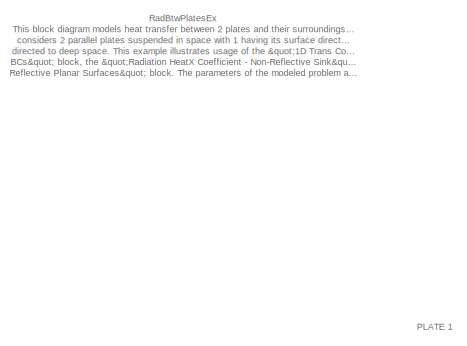
[diagram: root canvas - part 1/2, top left region]
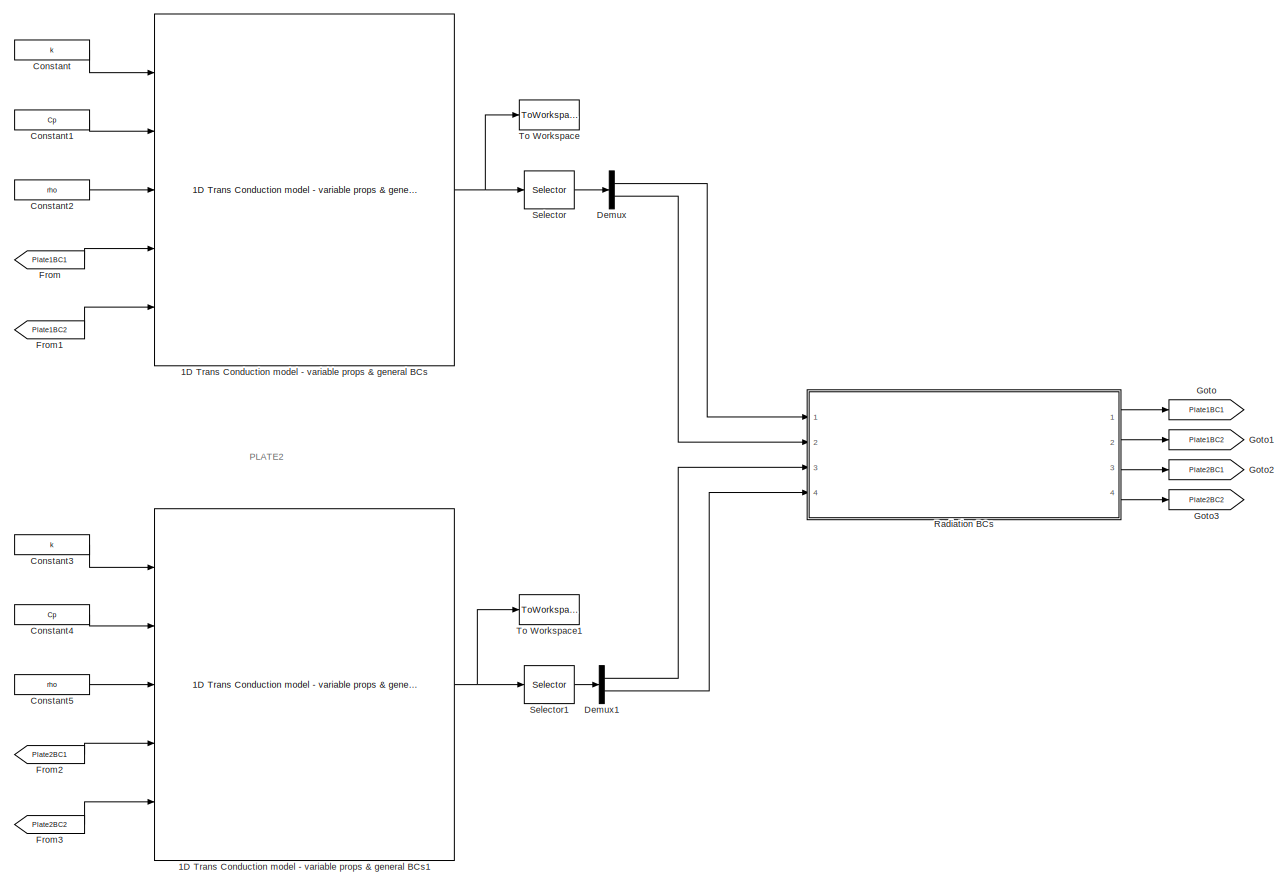
[diagram: root canvas - part 2/2, full width, middle band]
MODEL slx_18f9780a81a9
KIND model
CONFIG AbsTol = auto
CONFIG FixedStep = dt
CONFIG MaxStep = auto
CONFIG MinStep = auto
CONFIG RelTol = 1e-3
CONFIG SampleTimeConstraint = Unconstrained
CONFIG Solver = FixedStepDiscrete
CONFIG SolverMode = Auto
CONFIG SolverName = FixedStepDiscrete
CONFIG StartTime = 0.0
CONFIG StopTime = tsim
BLOCK [Reference] 1D Trans Conduction model - variable props & general BCs  REF=lib_Conduction_HeatX1DVarPropsAndGenBCs/1D Trans Conduction model - variable props & general BCs
  BN_M = double(gcb)
  Ports = [5, 1]
  SourceBlock = lib_Conduction_HeatX1DVarPropsAndGenBCs/1D Trans Conduction model - variable props & general BCs
  SourceType = TSAT: 1-D Trans Conduction Model - Variable Props + Generic BCs Block
  T0_M = To1
  a_M = off
  condin_M = off
  condout_M = off
  convin_M = off
  convout_M = off
  dt_M = dt
  radin_M = on
  radout_M = on
  x_M = x1
BLOCK [Reference] 1D Trans Conduction model - variable props & general BCs1  REF=lib_Conduction_HeatX1DVarPropsAndGenBCs/1D Trans Conduction model - variable props & general BCs
  BN_M = double(gcb)
  Ports = [5, 1]
  SourceBlock = lib_Conduction_HeatX1DVarPropsAndGenBCs/1D Trans Conduction model - variable props & general BCs
  SourceType = TSAT: 1-D Trans Conduction Model - Variable Props + Generic BCs Block
  T0_M = To2
  a_M = off
  condin_M = off
  condout_M = off
  convin_M = off
  convout_M = off
  dt_M = dt
  radin_M = on
  radout_M = on
  x_M = x2
BLOCK [Constant] Constant
  Value = k
BLOCK [Constant] Constant1
  Value = Cp
BLOCK [Constant] Constant2
  Value = rho
BLOCK [Constant] Constant3
  Value = k
BLOCK [Constant] Constant4
  Value = Cp
BLOCK [Constant] Constant5
  Value = rho
BLOCK [Demux] Demux
  DisplayOption = bar
  Outputs = 2
  Ports = [1, 2]
BLOCK [Demux] Demux1
  DisplayOption = bar
  Outputs = 2
  Ports = [1, 2]
BLOCK [From] From
  GotoTag = Plate1BC1
BLOCK [From] From1
  GotoTag = Plate1BC2
BLOCK [From] From2
  GotoTag = Plate2BC1
BLOCK [From] From3
  GotoTag = Plate2BC2
BLOCK [Goto] Goto
  GotoTag = Plate1BC1
BLOCK [Goto] Goto1
  GotoTag = Plate1BC2
BLOCK [Goto] Goto2
  GotoTag = Plate2BC1
BLOCK [Goto] Goto3
  GotoTag = Plate2BC2
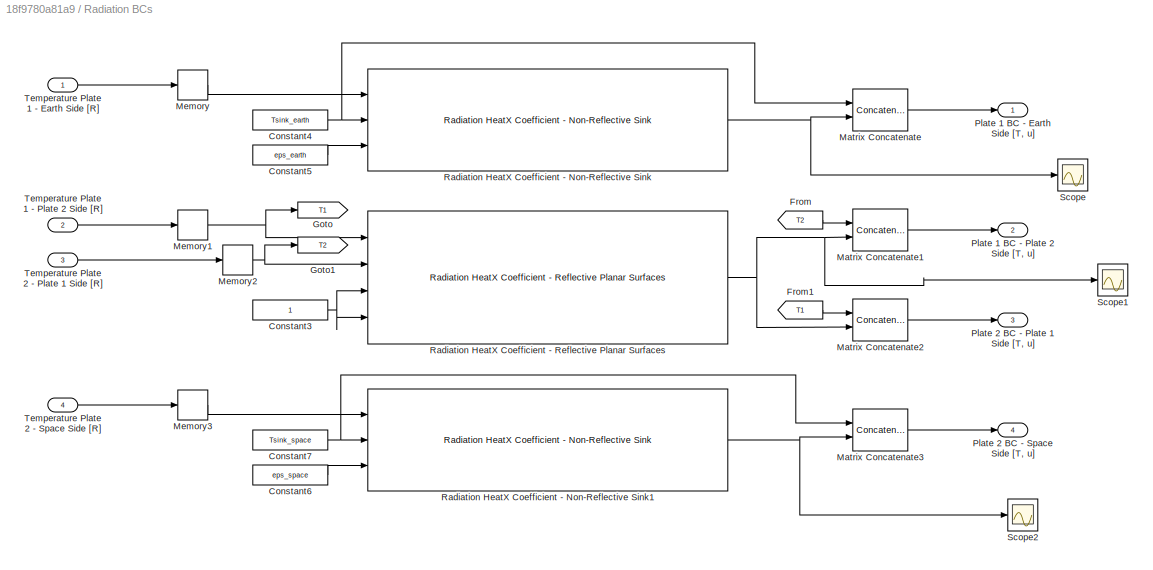
BLOCK [SubSystem] Radiation BCs
  Ports = [4, 4]
  RequestExecContextInheritance = off
BLOCK [Constant] Radiation BCs/Constant3
BLOCK [Constant] Radiation BCs/Constant4
  Value = Tsink_earth
BLOCK [Constant] Radiation BCs/Constant5
  Value = eps_earth
BLOCK [Constant] Radiation BCs/Constant6
  Value = eps_space
BLOCK [Constant] Radiation BCs/Constant7
  Value = Tsink_space
BLOCK [From] Radiation BCs/From
  GotoTag = T2
BLOCK [From] Radiation BCs/From1
  GotoTag = T1
BLOCK [Goto] Radiation BCs/Goto
  GotoTag = T1
BLOCK [Goto] Radiation BCs/Goto1
  GotoTag = T2
BLOCK [Concatenate] Radiation BCs/Matrix Concatenate
  ConcatenateDimension = 2
  Ports = [2, 1]
BLOCK [Concatenate] Radiation BCs/Matrix Concatenate1
  ConcatenateDimension = 2
  Ports = [2, 1]
BLOCK [Concatenate] Radiation BCs/Matrix Concatenate2
  ConcatenateDimension = 2
  Ports = [2, 1]
BLOCK [Concatenate] Radiation BCs/Matrix Concatenate3
  ConcatenateDimension = 2
  Ports = [2, 1]
BLOCK [Memory] Radiation BCs/Memory
  X0 = To1(1)
BLOCK [Memory] Radiation BCs/Memory1
  X0 = To1(end)
BLOCK [Memory] Radiation BCs/Memory2
  X0 = To2(1)
BLOCK [Memory] Radiation BCs/Memory3
  X0 = To2(end)
BLOCK [Outport] Radiation BCs/Plate 1 BC - Earth Side [T, u]
  IconDisplay = Port number
BLOCK [Outport] Radiation BCs/Plate 1 BC - Plate 2 Side [T, u]
  IconDisplay = Port number
  Port = 2
BLOCK [Outport] Radiation BCs/Plate 2 BC - Plate 1 Side [T, u]
  IconDisplay = Port number
  Port = 3
BLOCK [Outport] Radiation BCs/Plate 2 BC - Space Side [T, u]
  IconDisplay = Port number
  Port = 4
BLOCK [Reference] Radiation BCs/Radiation HeatX Coefficient - Non-Reflective Sink  REF=lib_Radiation_HeatXCoeffNonRefSink/Radiation HeatX Coefficient - Non-Reflective Sink
  Ports = [3, 1]
  SourceBlock = lib_Radiation_HeatXCoeffNonRefSink/Radiation HeatX Coefficient - Non-Reflective Sink
  SourceType = TSAT: Radiation HeatX Coefficient - Non-Reflective Sink Block
BLOCK [Reference] Radiation BCs/Radiation HeatX Coefficient - Non-Reflective Sink1  REF=lib_Radiation_HeatXCoeffNonRefSink/Radiation HeatX Coefficient - Non-Reflective Sink
  Ports = [3, 1]
  SourceBlock = lib_Radiation_HeatXCoeffNonRefSink/Radiation HeatX Coefficient - Non-Reflective Sink
  SourceType = TSAT: Radiation HeatX Coefficient - Non-Reflective Sink Block
BLOCK [Reference] Radiation BCs/Radiation HeatX Coefficient - Reflective Planar Surfaces  REF=lib_Radiation_HeatXCoeffRefPlanar/Radiation HeatX Coefficient - Reflective Planar Surfaces
  Ports = [4, 1]
  SourceBlock = lib_Radiation_HeatXCoeffRefPlanar/Radiation HeatX Coefficient - Reflective Planar Surfaces
  SourceType = TSAT: Radiation HeatX Coefficient - Non-Reflective Sink Block
BLOCK [Scope] Radiation BCs/Scope
  Floating = off
  NumInputPorts = 1
  Ports = [1]
BLOCK [Scope] Radiation BCs/Scope1
  Floating = off
  NumInputPorts = 1
  Ports = [1]
  SaveName = ScopeData1
BLOCK [Scope] Radiation BCs/Scope2
  Floating = off
  NumInputPorts = 1
  Ports = [1]
  SaveName = ScopeData2
BLOCK [Inport] Radiation BCs/Temperature Plate 1 - Earth Side [R]
  IconDisplay = Port number
BLOCK [Inport] Radiation BCs/Temperature Plate 1 - Plate 2 Side [R]
  IconDisplay = Port number
  Port = 2
BLOCK [Inport] Radiation BCs/Temperature Plate 2 - Plate 1 Side [R]
  IconDisplay = Port number
  Port = 3
BLOCK [Inport] Radiation BCs/Temperature Plate 2 - Space Side [R]
  IconDisplay = Port number
  Port = 4
BLOCK [Selector] Selector
  Indices = [1 length(x1)]
  InputPortWidth = length(x1)
  Ports = [1, 1]
BLOCK [Selector] Selector1
  Indices = [1 length(x2)]
  InputPortWidth = length(x2)
  Ports = [1, 1]
BLOCK [ToWorkspace] To Workspace
  FixptAsFi = on
  MaxDataPoints = inf
  Ports = [1]
  SampleTime = -1
  Save2DSignal = 3-D array (concatenate along third dimension)
  SaveFormat = Timeseries
  VariableName = T1
BLOCK [ToWorkspace] To Workspace1
  FixptAsFi = on
  MaxDataPoints = inf
  Ports = [1]
  SampleTime = -1
  Save2DSignal = 3-D array (concatenate along third dimension)
  SaveFormat = Timeseries
  VariableName = T2
ANNOTATION (root): RadBtwPlatesEx This block diagram models heat transfer between 2 plates and their surroundings via radation. The example considers 2 parallel plates suspended in space with 1 having its surface directed at the Earth and the other surface directed to deep space. This example illustrates usage of the "1D Trans Conduction model -variable props & general BCs" block, the "Radiation HeatX Coefficient - ...<+436ch>
ANNOTATION (root): PLATE 1
ANNOTATION (root): PLATE2
NET 1D Trans Conduction model - variable props & general BCs1:1 -> Selector1:1, To Workspace1:1
NET 1D Trans Conduction model - variable props & general BCs:1 -> Selector:1, To Workspace:1
LINE Constant1:1 -> 1D Trans Conduction model - variable props & general BCs:2
LINE Constant2:1 -> 1D Trans Conduction model - variable props & general BCs:3
LINE Constant3:1 -> 1D Trans Conduction model - variable props & general BCs1:1
LINE Constant4:1 -> 1D Trans Conduction model - variable props & general BCs1:2
LINE Constant5:1 -> 1D Trans Conduction model - variable props & general BCs1:3
LINE Constant:1 -> 1D Trans Conduction model - variable props & general BCs:1
LINE Demux1:1 -> Radiation BCs:3
LINE Demux1:2 -> Radiation BCs:4
LINE Demux:1 -> Radiation BCs:1
LINE Demux:2 -> Radiation BCs:2
LINE From1:1 -> 1D Trans Conduction model - variable props & general BCs:5
LINE From2:1 -> 1D Trans Conduction model - variable props & general BCs1:4
LINE From3:1 -> 1D Trans Conduction model - variable props & general BCs1:5
LINE From:1 -> 1D Trans Conduction model - variable props & general BCs:4
NET Radiation BCs/Constant3:1 -> Radiation BCs/Radiation HeatX Coefficient - Reflective Planar Surfaces:3, Radiation BCs/Radiation HeatX Coefficient - Reflective Planar Surfaces:4
NET Radiation BCs/Constant4:1 -> Radiation BCs/Matrix Concatenate:1, Radiation BCs/Radiation HeatX Coefficient - Non-Reflective Sink:2
LINE Radiation BCs/Constant5:1 -> Radiation BCs/Radiation HeatX Coefficient - Non-Reflective Sink:3
LINE Radiation BCs/Constant6:1 -> Radiation BCs/Radiation HeatX Coefficient - Non-Reflective Sink1:3
NET Radiation BCs/Constant7:1 -> Radiation BCs/Matrix Concatenate3:1, Radiation BCs/Radiation HeatX Coefficient - Non-Reflective Sink1:2
LINE Radiation BCs/From1:1 -> Radiation BCs/Matrix Concatenate2:1
LINE Radiation BCs/From:1 -> Radiation BCs/Matrix Concatenate1:1
LINE Radiation BCs/Matrix Concatenate1:1 -> Radiation BCs/Plate 1 BC - Plate 2 Side [T, u]:1
LINE Radiation BCs/Matrix Concatenate2:1 -> Radiation BCs/Plate 2 BC - Plate 1 Side [T, u]:1
LINE Radiation BCs/Matrix Concatenate3:1 -> Radiation BCs/Plate 2 BC - Space Side [T, u]:1
LINE Radiation BCs/Matrix Concatenate:1 -> Radiation BCs/Plate 1 BC - Earth Side [T, u]:1
NET Radiation BCs/Memory1:1 -> Radiation BCs/Goto:1, Radiation BCs/Radiation HeatX Coefficient - Reflective Planar Surfaces:1
NET Radiation BCs/Memory2:1 -> Radiation BCs/Goto1:1, Radiation BCs/Radiation HeatX Coefficient - Reflective Planar Surfaces:2
LINE Radiation BCs/Memory3:1 -> Radiation BCs/Radiation HeatX Coefficient - Non-Reflective Sink1:1
LINE Radiation BCs/Memory:1 -> Radiation BCs/Radiation HeatX Coefficient - Non-Reflective Sink:1
NET Radiation BCs/Radiation HeatX Coefficient - Non-Reflective Sink1:1 -> Radiation BCs/Matrix Concatenate3:2, Radiation BCs/Scope2:1
NET Radiation BCs/Radiation HeatX Coefficient - Non-Reflective Sink:1 -> Radiation BCs/Matrix Concatenate:2, Radiation BCs/Scope:1
NET Radiation BCs/Radiation HeatX Coefficient - Reflective Planar Surfaces:1 -> Radiation BCs/Matrix Concatenate1:2, Radiation BCs/Matrix Concatenate2:2, Radiation BCs/Scope1:1
LINE Radiation BCs/Temperature Plate 1 - Earth Side [R]:1 -> Radiation BCs/Memory:1
LINE Radiation BCs/Temperature Plate 1 - Plate 2 Side [R]:1 -> Radiation BCs/Memory1:1
LINE Radiation BCs/Temperature Plate 2 - Plate 1 Side [R]:1 -> Radiation BCs/Memory2:1
LINE Radiation BCs/Temperature Plate 2 - Space Side [R]:1 -> Radiation BCs/Memory3:1
LINE Radiation BCs:1 -> Goto:1
LINE Radiation BCs:2 -> Goto1:1
LINE Radiation BCs:3 -> Goto2:1
LINE Radiation BCs:4 -> Goto3:1
LINE Selector1:1 -> Demux1:1
LINE Selector:1 -> Demux:1
note: NET lines group one-source signal fan-out (src -> all destinations, sorted); 1:1 wires keep LINE
